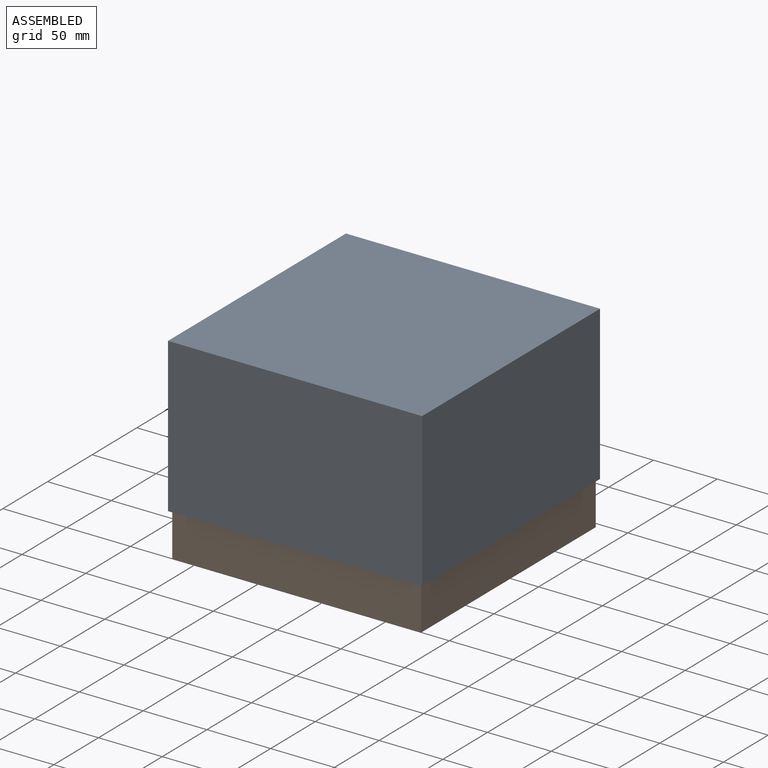
[diagram: assembled view]
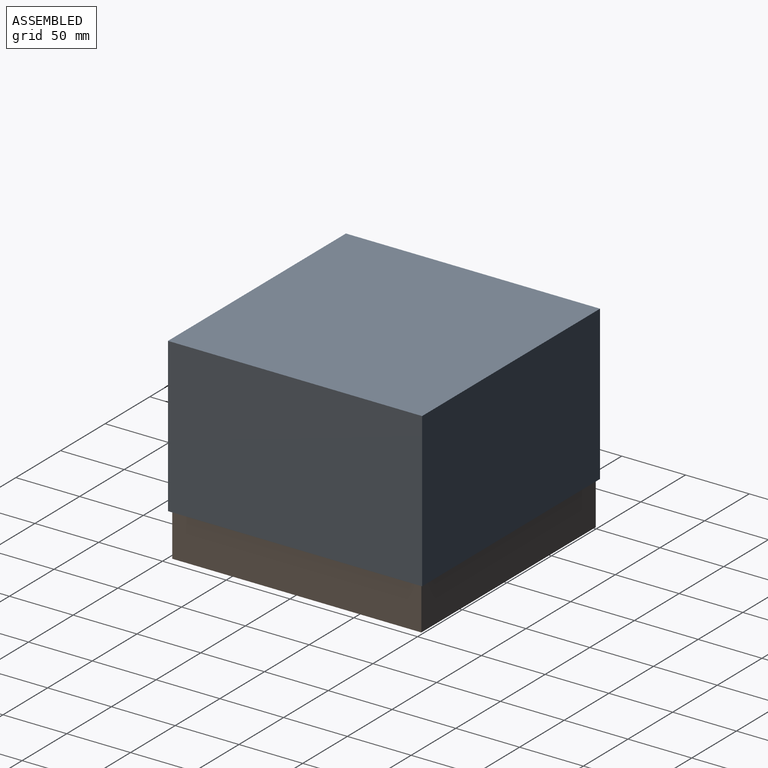
[diagram: assembled view, second angle]
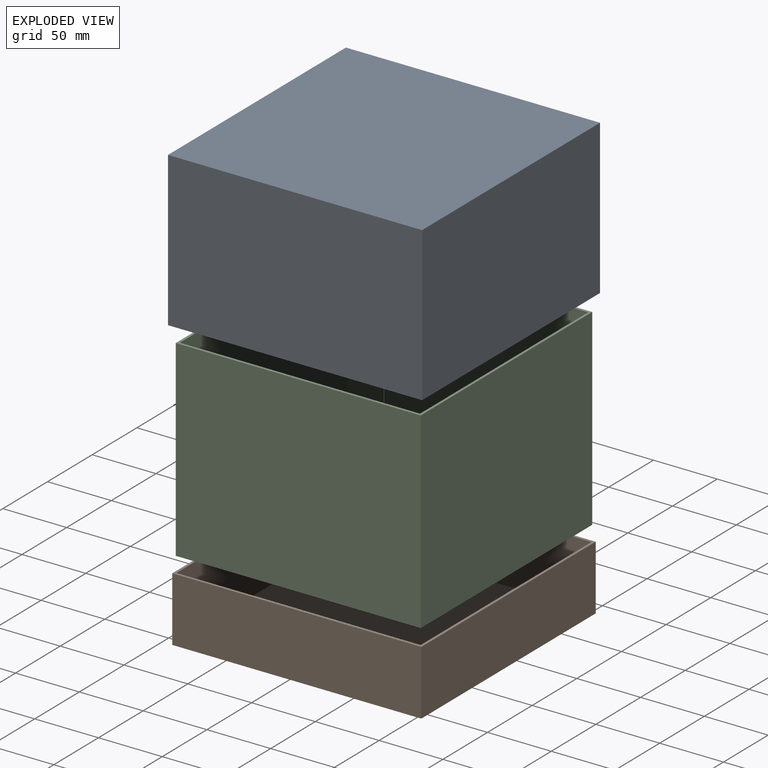
[diagram: exploded view]
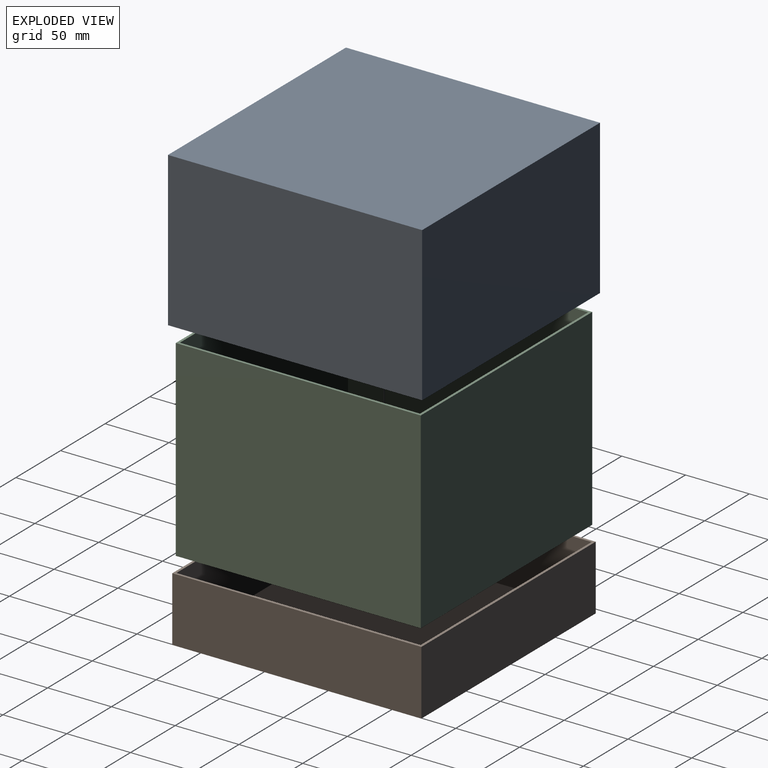
[diagram: exploded view, second angle]
ASSEMBLY  parts=3 mates=2
PART A: 11 faces, bbox 199.2x199.2x120.7 mm
  f0: plane 199.23x199.23mm, normal (0,0,-1), area 1503.6mm2, adj f1,f2,f3,f4,f6,f7,f8,f9
  f1: plane 199.23x120.65mm, normal (0,-1,0), area 24037.3mm2, adj f0,f2,f4,f5
  f2: plane 199.23x120.65mm, normal (1,0,0), area 24037.3mm2, adj f0,f1,f3,f5
  f3: plane 199.23x120.65mm, normal (0,1,0), area 24037.3mm2, adj f0,f2,f4,f5
  f4: plane 199.23x120.65mm, normal (-1,0,0), area 24037.3mm2, adj f0,f1,f3,f5
  f5: plane 199.23x199.23mm, normal (0,0,1), area 39693.1mm2, adj f1,f2,f3,f4
  f6: plane 195.42x118.75mm, normal (0,1,0), area 23205.3mm2, adj f0,f7,f9,f10
  f7: plane 195.42x118.75mm, normal (-1,0,0), area 23205.3mm2, adj f0,f6,f8,f10
  f8: plane 195.42x118.75mm, normal (0,-1,0), area 23205.3mm2, adj f0,f7,f9,f10
  f9: plane 195.42x118.75mm, normal (1,0,0), area 23205.3mm2, adj f0,f6,f8,f10
  f10: plane 195.42x195.42mm, normal (0,0,-1), area 38189.5mm2, adj f6,f7,f8,f9
PART B: 11 faces, bbox 195.3x195.3x50.8 mm
  f0: plane 195.26x195.26mm, normal (0,0,-1), area 1473.4mm2, adj f1,f2,f3,f4,f6,f7,f8,f9
  f1: plane 195.26x50.8mm, normal (0,-1,0), area 9919.3mm2, adj f0,f2,f4,f5
  f2: plane 195.26x50.8mm, normal (1,0,0), area 9919.3mm2, adj f0,f1,f3,f5
  f3: plane 195.26x50.8mm, normal (0,1,0), area 9919.3mm2, adj f0,f2,f4,f5
  f4: plane 195.26x50.8mm, normal (-1,0,0), area 9919.3mm2, adj f0,f1,f3,f5
  f5: plane 195.26x195.26mm, normal (0,0,1), area 38127.4mm2, adj f1,f2,f3,f4
  f6: plane 191.45x48.9mm, normal (0,1,0), area 9361.1mm2, adj f0,f7,f9,f10
  f7: plane 191.45x48.9mm, normal (-1,0,0), area 9361.1mm2, adj f0,f6,f8,f10
  f8: plane 191.45x48.9mm, normal (0,-1,0), area 9361.1mm2, adj f0,f7,f9,f10
  f9: plane 191.45x48.9mm, normal (1,0,0), area 9361.1mm2, adj f0,f6,f8,f10
  f10: plane 191.45x191.45mm, normal (0,0,-1), area 36654.1mm2, adj f6,f7,f8,f9
PART C: 11 faces, bbox 192.1x192.1x150.8 mm
  f0: plane 192.09x192.09mm, normal (0,0,1), area 1449.2mm2, adj f1,f2,f3,f4,f6,f7,f8,f9
  f1: plane 192.09x150.81mm, normal (0,-1,0), area 28969.2mm2, adj f0,f2,f4,f5
  f2: plane 192.09x150.81mm, normal (1,0,0), area 28969.2mm2, adj f0,f1,f3,f5
  f3: plane 192.09x150.81mm, normal (0,1,0), area 28969.2mm2, adj f0,f2,f4,f5
  f4: plane 192.09x150.81mm, normal (-1,0,0), area 28969.2mm2, adj f0,f1,f3,f5
  f5: plane 192.09x192.09mm, normal (0,0,-1), area 36897.6mm2, adj f1,f2,f3,f4
  f6: plane 188.28x148.91mm, normal (0,1,0), area 28035.9mm2, adj f0,f7,f9,f10
  f7: plane 188.28x148.91mm, normal (-1,0,0), area 28035.9mm2, adj f0,f6,f8,f10
  f8: plane 188.28x148.91mm, normal (0,-1,0), area 28035.9mm2, adj f0,f7,f9,f10
  f9: plane 188.28x148.91mm, normal (1,0,0), area 28035.9mm2, adj f0,f6,f8,f10
  f10: plane 188.28x188.28mm, normal (0,0,1), area 35448.4mm2, adj f6,f7,f8,f9
PLACE A t=(-88.43,-18.18,5.97)mm
PLACE B rot(axis=(1,0,0),180deg) t=(-88.43,-18.18,22.8)mm
PLACE C t=(-88.43,-18.18,-26.09)mm
MATE planar A.f10 <-> C.f0  axis (0,0,-1) through (-88.43,-18.18,124.72)mm
MATE planar B.f10 <-> C.f5  axis (0,0,1) through (-88.43,-18.18,-26.09)mm
